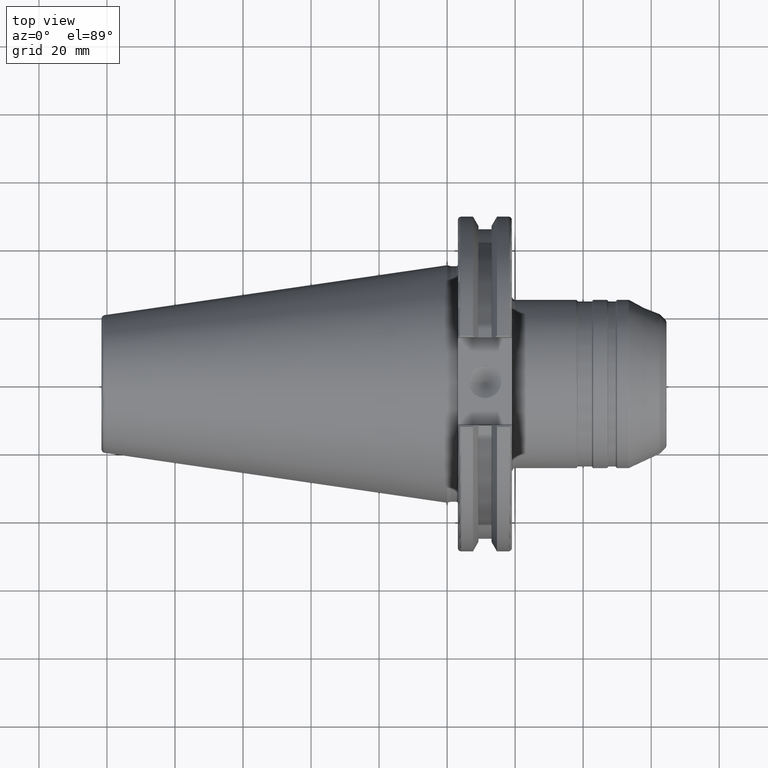
[diagram: clean part render]
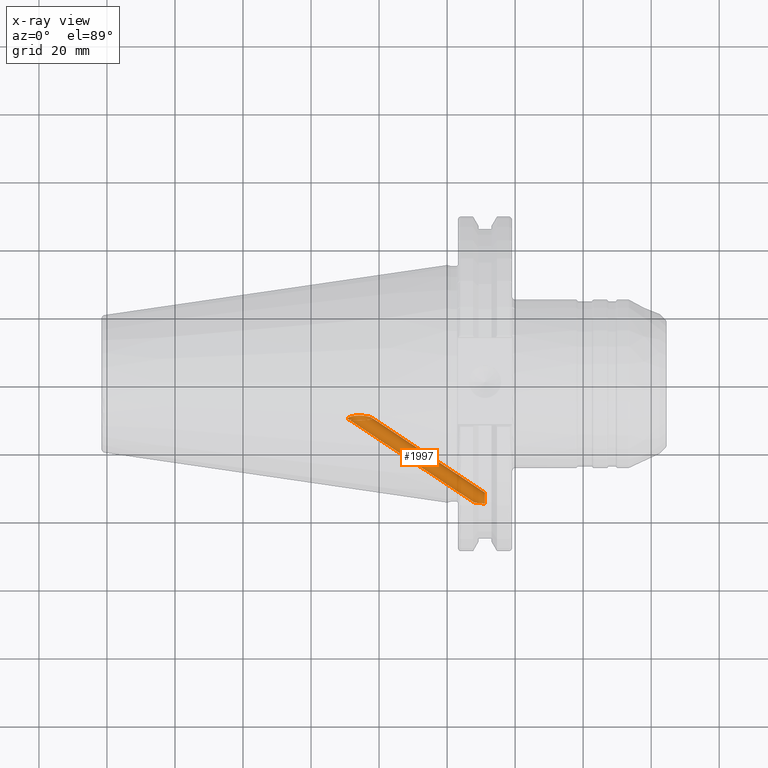
[diagram: x-ray — body ghosted, one internal face saturated and labeled with its STEP entity id]
A machine part, top view, then the same camera in x-ray: the body is ghosted and one INTERNAL B-rep face — a face not visible from any outside direction — is saturated and labeled: STEP entity #1997.
In plain terms, the highlighted cylindrical surface (bore or boss wall) has radius 2.067 mm, axis along (0.8192, -0.539, -0.1962).
Its self-contained STEP definition (entity closure, byte-faithful):
#31=B_SPLINE_CURVE_WITH_KNOTS('',3,(#3329,#3330,#3331,#3332,#3333,#3334,
#3335,#3336,#3337,#3338,#3339,#3340,#3341,#3342,#3343,#3344,#3345,#3346,
#3347,#3348),.UNSPECIFIED.,.F.,.F.,(4,2,2,2,2,2,2,2,2,4),(0.,0.119561117227355,
0.23912223445471,0.326974628906876,0.370900826132959,0.414827023359042,
0.458753220585125,0.502679417811208,0.590531812263374,0.694372911520202),
 .UNSPECIFIED.);
#32=B_SPLINE_CURVE_WITH_KNOTS('',3,(#3349,#3350,#3351,#3352,#3353,#3354,
#3355,#3356,#3357,#3358,#3359,#3360,#3361,#3362,#3363,#3364,#3365,#3366,
#3367,#3368,#3369,#3370,#3371,#3372,#3373,#3374),.UNSPECIFIED.,.F.,.F.,
(4,2,2,2,2,2,2,2,2,2,2,2,4),(0.694372911520202,0.710092929490729,0.829654046718083,
0.979816780410837,1.12997951410359,1.20927691003403,1.24892560799925,1.28857430596448,
1.3282230039297,1.36787170189492,1.44716909782536,1.59733183151811,1.74749456521087),
 .UNSPECIFIED.);
#72=ELLIPSE('',#2221,2.52334107496993,2.067);
#73=ELLIPSE('',#2222,2.52334107496993,2.067);
#74=ELLIPSE('',#2223,3.60370452654881,2.067);
#75=ELLIPSE('',#2224,3.60370452654881,2.067);
#76=ELLIPSE('',#2225,3.60370452654881,2.067);
#164=LINE('',#3327,#260);
#260=VECTOR('',#2681,2.067);
#339=CYLINDRICAL_SURFACE('',#2220,2.067);
#393=FACE_OUTER_BOUND('',#499,.T.);
#499=EDGE_LOOP('',(#1541,#1542,#1543,#1544,#1545,#1546,#1547,#1548,#1549));
#850=VERTEX_POINT('',#3317);
#851=VERTEX_POINT('',#3318);
#852=VERTEX_POINT('',#3320);
#853=VERTEX_POINT('',#3322);
#854=VERTEX_POINT('',#3324);
#855=VERTEX_POINT('',#3326);
#856=VERTEX_POINT('',#3328);
#1108=EDGE_CURVE('',#850,#851,#72,.T.);
#1109=EDGE_CURVE('',#851,#852,#73,.T.);
#1110=EDGE_CURVE('',#852,#853,#74,.T.);
#1111=EDGE_CURVE('',#853,#854,#75,.T.);
#1112=EDGE_CURVE('',#854,#855,#164,.T.);
#1113=EDGE_CURVE('',#856,#855,#31,.T.);
#1114=EDGE_CURVE('',#855,#856,#32,.T.);
#1115=EDGE_CURVE('',#854,#850,#76,.T.);
#1541=ORIENTED_EDGE('',*,*,#1108,.T.);
#1542=ORIENTED_EDGE('',*,*,#1109,.T.);
#1543=ORIENTED_EDGE('',*,*,#1110,.T.);
#1544=ORIENTED_EDGE('',*,*,#1111,.T.);
#1545=ORIENTED_EDGE('',*,*,#1112,.T.);
#1546=ORIENTED_EDGE('',*,*,#1113,.F.);
#1547=ORIENTED_EDGE('',*,*,#1114,.F.);
#1548=ORIENTED_EDGE('',*,*,#1112,.F.);
#1549=ORIENTED_EDGE('',*,*,#1115,.T.);
#1997=ADVANCED_FACE('',(#393),#339,.F.);
#2220=AXIS2_PLACEMENT_3D('',#3316,#2671,#2672);
#2221=AXIS2_PLACEMENT_3D('',#3319,#2673,#2674);
#2222=AXIS2_PLACEMENT_3D('',#3321,#2675,#2676);
#2223=AXIS2_PLACEMENT_3D('',#3323,#2677,#2678);
#2224=AXIS2_PLACEMENT_3D('',#3325,#2679,#2680);
#2225=AXIS2_PLACEMENT_3D('',#3375,#2682,#2683);
#2671=DIRECTION('center_axis',(0.819152044288991,-0.538985544695757,-0.196174694969011));
#2672=DIRECTION('ref_axis',(0.232899439919958,1.19097002014912E-16,0.972500823076757));
#2673=DIRECTION('center_axis',(1.,-8.26894464656789E-16,-3.00964972014558E-16));
#2674=DIRECTION('ref_axis',(9.10217597408032E-16,0.939692620785909,0.342020143325668));
#2675=DIRECTION('center_axis',(1.,-8.26894464656789E-16,-3.00964972014558E-16));
#2676=DIRECTION('ref_axis',(9.10217597408032E-16,0.939692620785909,0.342020143325668));
#2677=DIRECTION('center_axis',(-1.15799547491313E-15,-0.939692620785908,
-0.342020143325669));
#2678=DIRECTION('ref_axis',(1.,-1.18417581670875E-15,-2.69568478600365E-16));
#2679=DIRECTION('center_axis',(-1.15799547491313E-15,-0.939692620785908,
-0.342020143325669));
#2680=DIRECTION('ref_axis',(1.,-1.18417581670875E-15,-2.69568478600365E-16));
#2681=DIRECTION('',(-0.819152044288991,0.538985544695757,0.196174694969011));
#2682=DIRECTION('center_axis',(-1.15799547491313E-15,-0.939692620785908,
-0.342020143325669));
#2683=DIRECTION('ref_axis',(1.,-1.18417581670875E-15,-2.69568478600365E-16));
#3316=CARTESIAN_POINT('Origin',(-6.26179816852985,-22.8124367419093,-8.30304794513563));
#3317=CARTESIAN_POINT('',(11.1125,-33.5374193244015,-14.406277823894));
#3318=CARTESIAN_POINT('',(11.1125,-33.927621390073,-10.3384851041402));
#3319=CARTESIAN_POINT('Origin',(11.1125,-34.2443749606556,-12.4639331767295));
#3320=CARTESIAN_POINT('',(11.1125,-34.9513305969098,-10.521588529565));
#3321=CARTESIAN_POINT('Origin',(11.1125,-34.2443749606556,-12.4639331767295));
#3322=CARTESIAN_POINT('',(9.64922376918121,-34.8904276747021,-10.6889179331096));
#3323=CARTESIAN_POINT('Origin',(11.1125,-34.2443749606557,-12.4639331767295));
#3324=CARTESIAN_POINT('',(9.64922376918122,-33.5983222466092,-14.2389484203494));
#3325=CARTESIAN_POINT('Origin',(11.1125,-34.2443749606557,-12.4639331767295));
#3326=CARTESIAN_POINT('',(-27.2817700449144,-9.29847223003359,-5.39452631715962));
#3327=CARTESIAN_POINT('',(-6.7432013108444,-22.8124367419093,-10.3132071464353));
#3328=CARTESIAN_POINT('',(-25.8661001504671,-10.6201565698881,-1.66576541897819));
#3329=CARTESIAN_POINT('Ctrl Pts',(-25.8661001504671,-10.6201565698881,-1.66576541897819));
#3330=CARTESIAN_POINT('Ctrl Pts',(-26.2646372078916,-10.6201565698881,-1.66576541897819));
#3331=CARTESIAN_POINT('Ctrl Pts',(-26.6998878806201,-10.6143152313827,-1.7054652963607));
#3332=CARTESIAN_POINT('Ctrl Pts',(-27.5358834629278,-10.581107150133,-1.9006503519722));
#3333=CARTESIAN_POINT('Ctrl Pts',(-27.9365894789067,-10.5537446612391,-2.05630280101242));
#3334=CARTESIAN_POINT('Ctrl Pts',(-28.5156671861675,-10.4740146438353,-2.42551302150237));
#3335=CARTESIAN_POINT('Ctrl Pts',(-28.7535399826836,-10.4253790030278,-2.6340276380059));
#3336=CARTESIAN_POINT('Ctrl Pts',(-29.0040873886614,-10.3236825762943,-3.00001845559321));
#3337=CARTESIAN_POINT('Ctrl Pts',(-29.0705800145244,-10.2850007223918,-3.13070982444013));
#3338=CARTESIAN_POINT('Ctrl Pts',(-29.1601828267093,-10.1990490697036,-3.40027052829518));
#3339=CARTESIAN_POINT('Ctrl Pts',(-29.1833297372398,-10.1517744876852,-3.53912612944249));
#3340=CARTESIAN_POINT('Ctrl Pts',(-29.1833297372398,-10.0516168592118,-3.8143069520594));
#3341=CARTESIAN_POINT('Ctrl Pts',(-29.1601828267093,-9.9985766301147,-3.95106402928878));
#3342=CARTESIAN_POINT('Ctrl Pts',(-29.0705800145244,-9.89114913553693,-4.21280816594018));
#3343=CARTESIAN_POINT('Ctrl Pts',(-29.0040873886614,-9.83677436218072,-4.33778777921723));
#3344=CARTESIAN_POINT('Ctrl Pts',(-28.7535399826836,-9.6794239819608,-4.68352221431626));
#3345=CARTESIAN_POINT('Ctrl Pts',(-28.5156671861675,-9.5826504324119,-4.87451606489807));
#3346=CARTESIAN_POINT('Ctrl Pts',(-27.9804781913187,-9.4197613013051,-5.18327673990492));
#3347=CARTESIAN_POINT('Ctrl Pts',(-27.6401807878264,-9.34826900342979,-5.3086922907843));
#3348=CARTESIAN_POINT('Ctrl Pts',(-27.2817700449424,-9.29847223007871,-5.39452631715289));
#3349=CARTESIAN_POINT('Ctrl Pts',(-27.2817700449424,-9.2984722300787,-5.39452631715289));
#3350=CARTESIAN_POINT('Ctrl Pts',(-27.2275119201798,-9.29093372964337,-5.40752032864404));
#3351=CARTESIAN_POINT('Ctrl Pts',(-27.1728444488493,-9.28387660354602,-5.41962218821447));
#3352=CARTESIAN_POINT('Ctrl Pts',(-26.6998878806201,-9.22728916176486,-5.51628810283052));
#3353=CARTESIAN_POINT('Ctrl Pts',(-26.2646372078916,-9.20624529737974,-5.55045471330714));
#3354=CARTESIAN_POINT('Ctrl Pts',(-25.3655577048245,-9.20624529737974,-5.55045471330714));
#3355=CARTESIAN_POINT('Ctrl Pts',(-24.8216023168721,-9.23921351331064,-5.49699753269144));
#3356=CARTESIAN_POINT('Ctrl Pts',(-23.7751943484178,-9.37186454839406,-5.26765635775651));
#3357=CARTESIAN_POINT('Ctrl Pts',(-23.2719863709753,-9.47018069960387,-5.09443891771105));
#3358=CARTESIAN_POINT('Ctrl Pts',(-22.6319934394989,-9.65914070853563,-4.72064105599194));
#3359=CARTESIAN_POINT('Ctrl Pts',(-22.4088895559492,-9.74002874966569,-4.55429362131295));
#3360=CARTESIAN_POINT('Ctrl Pts',(-22.1626110206589,-9.87213775604275,-4.25619655626703));
#3361=CARTESIAN_POINT('Ctrl Pts',(-22.0949995591159,-9.91793695627252,-4.14875222080434));
#3362=CARTESIAN_POINT('Ctrl Pts',(-22.0016708254756,-10.0101194365561,-3.92110332314007));
#3363=CARTESIAN_POINT('Ctrl Pts',(-21.9759206841422,-10.0564934955794,-3.80090850375656));
#3364=CARTESIAN_POINT('Ctrl Pts',(-21.9759206841422,-10.1468978513177,-3.55252457774531));
#3365=CARTESIAN_POINT('Ctrl Pts',(-22.0016708254756,-10.1886330017462,-3.43064133371386));
#3366=CARTESIAN_POINT('Ctrl Pts',(-22.0949995591159,-10.2643470157495,-3.19699840451952));
#3367=CARTESIAN_POINT('Ctrl Pts',(-22.1626110206589,-10.2983266804806,-3.08525210995246));
#3368=CARTESIAN_POINT('Ctrl Pts',(-22.4088895559492,-10.3887384101549,-2.77197847733679));
#3369=CARTESIAN_POINT('Ctrl Pts',(-22.6319934394989,-10.4337006456472,-2.59255511876364));
#3370=CARTESIAN_POINT('Ctrl Pts',(-23.2719863709753,-10.5292215148737,-2.18474819147636));
#3371=CARTESIAN_POINT('Ctrl Pts',(-23.7751943484178,-10.5652489978134,-1.9888595302485));
#3372=CARTESIAN_POINT('Ctrl Pts',(-24.8216023168721,-10.6110500751529,-1.72790755584751));
#3373=CARTESIAN_POINT('Ctrl Pts',(-25.3655577048245,-10.6201565698881,-1.66576541897819));
#3374=CARTESIAN_POINT('Ctrl Pts',(-25.8661001504671,-10.6201565698881,-1.66576541897819));
#3375=CARTESIAN_POINT('Origin',(11.1125,-34.2443749606557,-12.4639331767295));